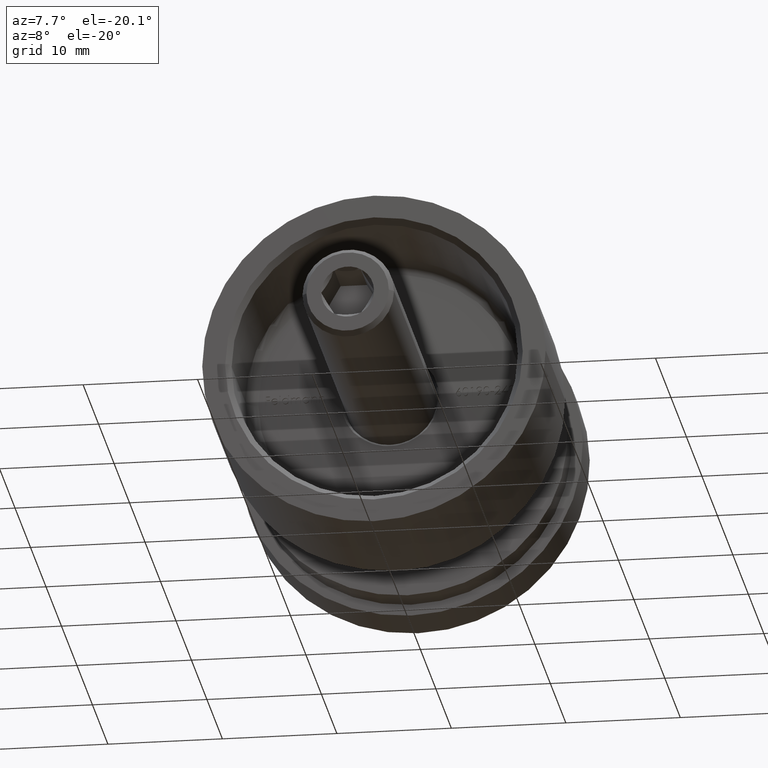
[diagram: clean part render]
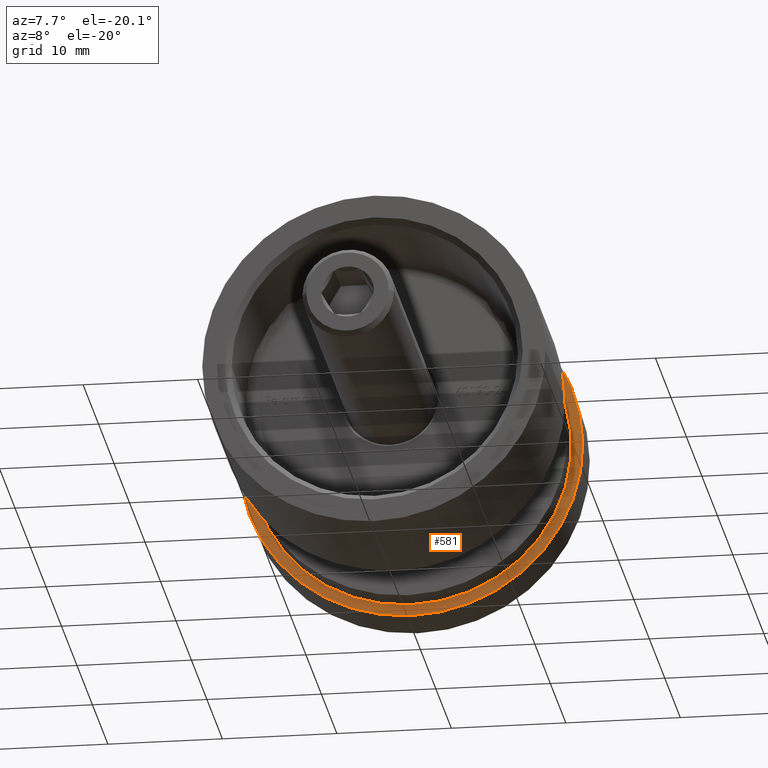
[diagram: same view with one face highlighted and labeled with its STEP entity id]
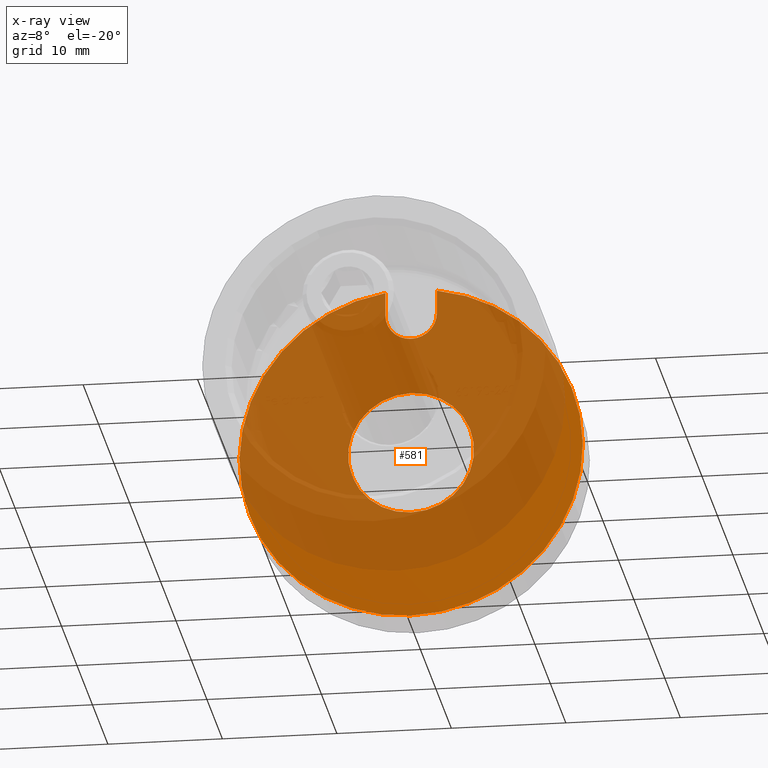
[diagram: x-ray of the same camera — body ghosted, the highlighted face saturated]
A machine part, auxiliary view. The second image highlights one B-rep face of the part: STEP entity #581.
The next image is the same camera in x-ray: the body ghosted, the highlighted face saturated — about 77% of this face is hidden behind the body in this view.
In plain terms, the highlighted planar face has unit normal (0, -1, 0).
Its self-contained STEP definition (entity closure, byte-faithful):
#48 = CARTESIAN_POINT ( 'NONE',  ( 2.250000000000005773, 5.000000000000000888, 14.83028994996389116 ) ) ;
#441 = CARTESIAN_POINT ( 'NONE',  ( -2.250000000000000444, 5.000000000000000888, 12.75000000000000000 ) ) ;
#467 = AXIS2_PLACEMENT_3D ( 'NONE', #4773, #14419, #13114 ) ;
#549 = PLANE ( 'NONE',  #12451 ) ;
#581 = ADVANCED_FACE ( 'NONE', ( #4995, #15240 ), #549, .T. ) ;
#668 = ORIENTED_EDGE ( 'NONE', *, *, #3200, .F. ) ;
#891 = AXIS2_PLACEMENT_3D ( 'NONE', #8079, #4594, #13091 ) ;
#1490 = CARTESIAN_POINT ( 'NONE',  ( 6.735557395310442023E-16, 5.000000000000000888, 5.500000000000000000 ) ) ;
#1643 = AXIS2_PLACEMENT_3D ( 'NONE', #14666, #3784, #4962 ) ;
#1666 = EDGE_CURVE ( 'NONE', #8947, #11136, #6119, .T. ) ;
#1881 = ORIENTED_EDGE ( 'NONE', *, *, #11259, .F. ) ;
#1897 = EDGE_LOOP ( 'NONE', ( #9715, #1881 ) ) ;
#1985 = EDGE_CURVE ( 'NONE', #6110, #4278, #9888, .T. ) ;
#3156 = DIRECTION ( 'NONE',  ( 0.000000000000000000, 1.000000000000000000, 0.000000000000000000 ) ) ;
#3200 = EDGE_CURVE ( 'NONE', #4762, #7032, #7793, .T. ) ;
#3427 = VERTEX_POINT ( 'NONE', #12635 ) ;
#3784 = DIRECTION ( 'NONE',  ( -0.000000000000000000, -1.000000000000000000, -0.000000000000000000 ) ) ;
#3981 = CIRCLE ( 'NONE', #1643, 15.00000000000000000 ) ;
#4034 = CARTESIAN_POINT ( 'NONE',  ( 5.500000000000000000, 5.000000000000000888, 0.000000000000000000 ) ) ;
#4117 = ORIENTED_EDGE ( 'NONE', *, *, #11080, .F. ) ;
#4278 = VERTEX_POINT ( 'NONE', #15168 ) ;
#4594 = DIRECTION ( 'NONE',  ( -0.000000000000000000, -1.000000000000000000, -0.000000000000000000 ) ) ;
#4762 = VERTEX_POINT ( 'NONE', #11961 ) ;
#4773 = CARTESIAN_POINT ( 'NONE',  ( 0.000000000000000000, 5.000000000000000888, 0.000000000000000000 ) ) ;
#4899 = AXIS2_PLACEMENT_3D ( 'NONE', #11720, #3156, #11874 ) ;
#4922 = VERTEX_POINT ( 'NONE', #1490 ) ;
#4962 = DIRECTION ( 'NONE',  ( 0.000000000000000000, 0.000000000000000000, -1.000000000000000000 ) ) ;
#4995 = FACE_OUTER_BOUND ( 'NONE', #12306, .T. ) ;
#5131 = EDGE_CURVE ( 'NONE', #3427, #4922, #9631, .T. ) ;
#5198 = CIRCLE ( 'NONE', #9121, 5.500000000000000000 ) ;
#5475 = CARTESIAN_POINT ( 'NONE',  ( 2.250000000000000000, 5.000000000000000888, 14.83028994996389116 ) ) ;
#6110 = VERTEX_POINT ( 'NONE', #8601 ) ;
#6119 = CIRCLE ( 'NONE', #9299, 2.250000000000000444 ) ;
#6418 = ORIENTED_EDGE ( 'NONE', *, *, #13834, .T. ) ;
#6491 = DIRECTION ( 'NONE',  ( 0.000000000000000000, 0.000000000000000000, -1.000000000000000000 ) ) ;
#7032 = VERTEX_POINT ( 'NONE', #48 ) ;
#7793 = LINE ( 'NONE', #5475, #8012 ) ;
#8012 = VECTOR ( 'NONE', #15246, 1000.000000000000000 ) ;
#8079 = CARTESIAN_POINT ( 'NONE',  ( 0.000000000000000000, 5.000000000000000888, 0.000000000000000000 ) ) ;
#8184 = DIRECTION ( 'NONE',  ( -0.000000000000000000, -1.000000000000000000, -0.000000000000000000 ) ) ;
#8357 = CIRCLE ( 'NONE', #4899, 2.250000000000000444 ) ;
#8548 = CARTESIAN_POINT ( 'NONE',  ( -4.336808689942017736E-16, 5.000000000000000888, 12.75000000000000000 ) ) ;
#8601 = CARTESIAN_POINT ( 'NONE',  ( -2.250000000000000888, 5.000000000000000888, 14.83028994996389116 ) ) ;
#8947 = VERTEX_POINT ( 'NONE', #9380 ) ;
#9121 = AXIS2_PLACEMENT_3D ( 'NONE', #10486, #8184, #11722 ) ;
#9299 = AXIS2_PLACEMENT_3D ( 'NONE', #8548, #11077, #11021 ) ;
#9380 = CARTESIAN_POINT ( 'NONE',  ( 0.000000000000000000, 5.000000000000000888, 10.49999999999999822 ) ) ;
#9631 = CIRCLE ( 'NONE', #467, 5.500000000000000000 ) ;
#9715 = ORIENTED_EDGE ( 'NONE', *, *, #5131, .F. ) ;
#9888 = CIRCLE ( 'NONE', #891, 15.00000000000000000 ) ;
#10140 = DIRECTION ( 'NONE',  ( 2.003010763737971244E-16, 0.000000000000000000, -1.000000000000000000 ) ) ;
#10486 = CARTESIAN_POINT ( 'NONE',  ( 0.000000000000000000, 5.000000000000000888, 0.000000000000000000 ) ) ;
#10991 = ORIENTED_EDGE ( 'NONE', *, *, #13542, .T. ) ;
#11021 = DIRECTION ( 'NONE',  ( 0.000000000000000000, 0.000000000000000000, -1.000000000000000000 ) ) ;
#11077 = DIRECTION ( 'NONE',  ( 0.000000000000000000, 1.000000000000000000, 0.000000000000000000 ) ) ;
#11080 = EDGE_CURVE ( 'NONE', #6110, #11136, #13279, .T. ) ;
#11136 = VERTEX_POINT ( 'NONE', #441 ) ;
#11259 = EDGE_CURVE ( 'NONE', #4922, #3427, #5198, .T. ) ;
#11573 = VECTOR ( 'NONE', #10140, 1000.000000000000000 ) ;
#11633 = ORIENTED_EDGE ( 'NONE', *, *, #1985, .T. ) ;
#11720 = CARTESIAN_POINT ( 'NONE',  ( 0.000000000000000000, 5.000000000000000888, 12.75000000000000000 ) ) ;
#11722 = DIRECTION ( 'NONE',  ( 0.000000000000000000, 0.000000000000000000, -1.000000000000000000 ) ) ;
#11874 = DIRECTION ( 'NONE',  ( 0.000000000000000000, 0.000000000000000000, -1.000000000000000000 ) ) ;
#11961 = CARTESIAN_POINT ( 'NONE',  ( 2.250000000000000000, 5.000000000000000888, 12.75000000000000000 ) ) ;
#12306 = EDGE_LOOP ( 'NONE', ( #4117, #11633, #10991, #668, #6418, #12638 ) ) ;
#12451 = AXIS2_PLACEMENT_3D ( 'NONE', #4034, #13753, #6491 ) ;
#12635 = CARTESIAN_POINT ( 'NONE',  ( 0.000000000000000000, 5.000000000000000888, -5.500000000000000000 ) ) ;
#12638 = ORIENTED_EDGE ( 'NONE', *, *, #1666, .T. ) ;
#13091 = DIRECTION ( 'NONE',  ( 0.000000000000000000, 0.000000000000000000, -1.000000000000000000 ) ) ;
#13114 = DIRECTION ( 'NONE',  ( 0.000000000000000000, 0.000000000000000000, -1.000000000000000000 ) ) ;
#13279 = LINE ( 'NONE', #13705, #11573 ) ;
#13542 = EDGE_CURVE ( 'NONE', #4278, #7032, #3981, .T. ) ;
#13705 = CARTESIAN_POINT ( 'NONE',  ( -2.250000000000000888, 5.000000000000000888, 14.83028994996389116 ) ) ;
#13753 = DIRECTION ( 'NONE',  ( 0.000000000000000000, -1.000000000000000000, -0.000000000000000000 ) ) ;
#13834 = EDGE_CURVE ( 'NONE', #4762, #8947, #8357, .T. ) ;
#14419 = DIRECTION ( 'NONE',  ( -0.000000000000000000, -1.000000000000000000, -0.000000000000000000 ) ) ;
#14666 = CARTESIAN_POINT ( 'NONE',  ( 0.000000000000000000, 5.000000000000000888, 0.000000000000000000 ) ) ;
#15168 = CARTESIAN_POINT ( 'NONE',  ( 0.000000000000000000, 5.000000000000000888, -15.00000000000000000 ) ) ;
#15240 = FACE_BOUND ( 'NONE', #1897, .T. ) ;
#15246 = DIRECTION ( 'NONE',  ( -0.000000000000000000, -0.000000000000000000, 1.000000000000000000 ) ) ;